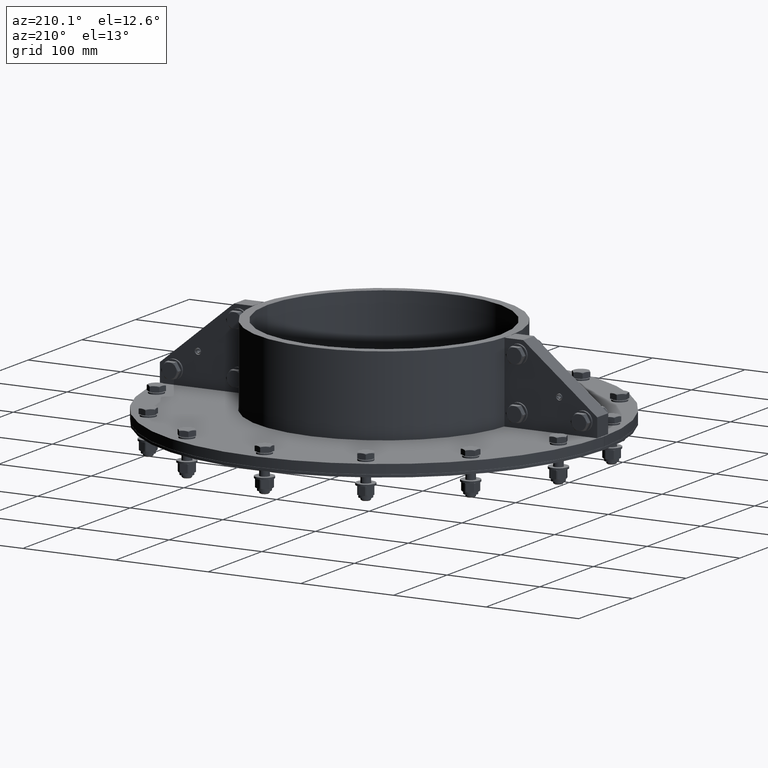
[diagram: clean part render]
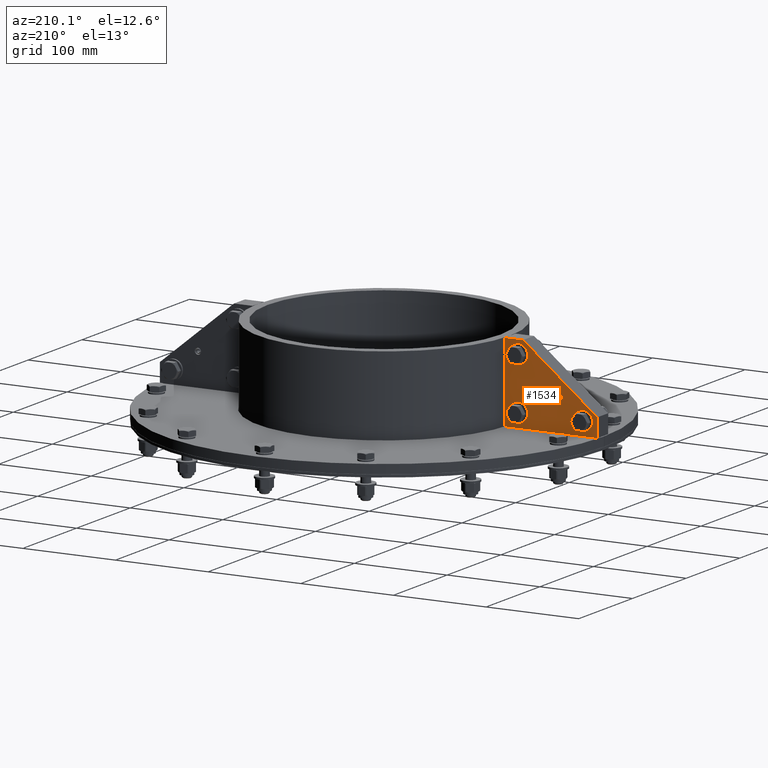
[diagram: same view with one face highlighted and labeled with its STEP entity id]
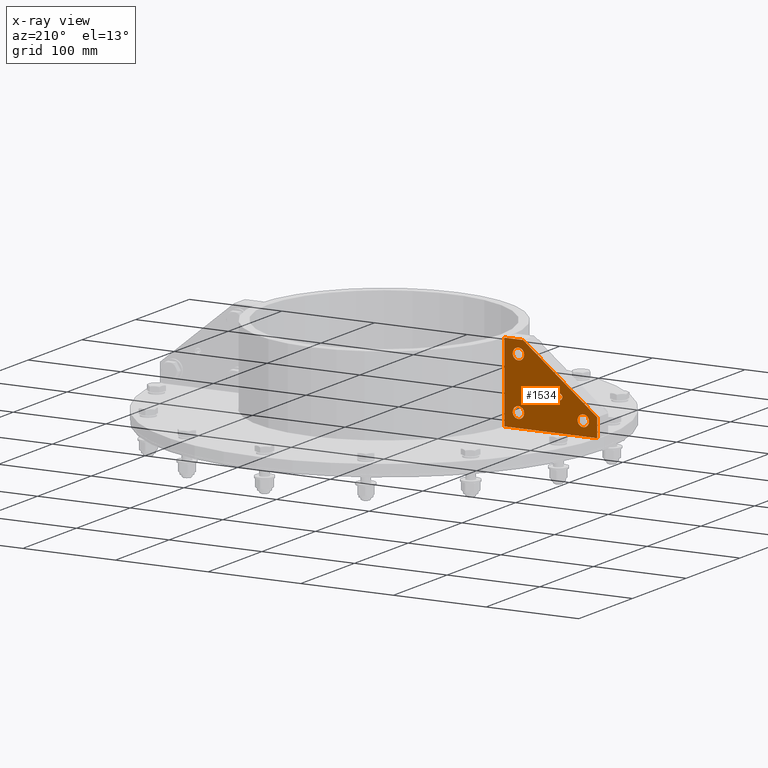
[diagram: x-ray of the same camera — body ghosted, the highlighted face saturated]
A machine part, auxiliary view. The second image highlights one B-rep face of the part: STEP entity #1534.
The next image is the same camera in x-ray: the body ghosted, the highlighted face saturated — about 0% of this face is hidden behind the body in this view.
In plain terms, the highlighted planar face has unit normal (-0, 1, 0).
Its self-contained STEP definition (entity closure, byte-faithful):
#1234=CARTESIAN_POINT('',(21.150000000000002,71.0,5.0));
#1235=VERTEX_POINT('',#1234);
#1236=CARTESIAN_POINT('',(15.0,71.0,5.0));
#1237=DIRECTION('',(0.0,0.0,-1.0));
#1238=DIRECTION('',(-1.0,0.0,0.0));
#1239=AXIS2_PLACEMENT_3D('',#1236,#1237,#1238);
#1240=CIRCLE('',#1239,6.150000000000001);
#1241=EDGE_CURVE('',#1235,#1235,#1240,.T.);
#1262=CARTESIAN_POINT('',(91.150000000000006,15.000000000000002,5.0));
#1263=VERTEX_POINT('',#1262);
#1264=CARTESIAN_POINT('',(85.0,15.000000000000002,5.0));
#1265=DIRECTION('',(0.0,0.0,-1.0));
#1266=DIRECTION('',(-1.0,0.0,0.0));
#1267=AXIS2_PLACEMENT_3D('',#1264,#1265,#1266);
#1268=CIRCLE('',#1267,6.150000000000001);
#1269=EDGE_CURVE('',#1263,#1263,#1268,.T.);
#1290=CARTESIAN_POINT('',(21.150000000000002,15.000000000000002,5.0));
#1291=VERTEX_POINT('',#1290);
#1292=CARTESIAN_POINT('',(15.0,15.000000000000002,5.0));
#1293=DIRECTION('',(0.0,0.0,-1.0));
#1294=DIRECTION('',(-1.0,0.0,0.0));
#1295=AXIS2_PLACEMENT_3D('',#1292,#1293,#1294);
#1296=CIRCLE('',#1295,6.150000000000001);
#1297=EDGE_CURVE('',#1291,#1291,#1296,.T.);
#1318=CARTESIAN_POINT('',(62.350000000000001,35.0,5.0));
#1319=VERTEX_POINT('',#1318);
#1320=CARTESIAN_POINT('',(59.0,35.0,5.0));
#1321=DIRECTION('',(0.0,0.0,-1.0));
#1322=DIRECTION('',(-1.0,0.0,0.0));
#1323=AXIS2_PLACEMENT_3D('',#1320,#1321,#1322);
#1324=CIRCLE('',#1323,3.35);
#1325=EDGE_CURVE('',#1319,#1319,#1324,.T.);
#1395=CARTESIAN_POINT('',(0.0,85.0,5.0));
#1396=VERTEX_POINT('',#1395);
#1397=CARTESIAN_POINT('',(20.0,85.0,5.0));
#1398=VERTEX_POINT('',#1397);
#1399=CARTESIAN_POINT('',(0.0,85.0,5.0));
#1400=DIRECTION('',(1.0,0.0,0.0));
#1401=VECTOR('',#1400,20.0);
#1402=LINE('',#1399,#1401);
#1403=EDGE_CURVE('',#1396,#1398,#1402,.T.);
#1426=CARTESIAN_POINT('',(100.0,20.000000000000018,5.0));
#1427=VERTEX_POINT('',#1426);
#1428=CARTESIAN_POINT('',(20.0,85.0,5.0));
#1429=DIRECTION('',(0.776114000116266,-0.630592625094466,0.0));
#1430=VECTOR('',#1429,103.0776406404415);
#1431=LINE('',#1428,#1430);
#1432=EDGE_CURVE('',#1398,#1427,#1431,.T.);
#1450=CARTESIAN_POINT('',(100.0,1.836970E-014,5.0));
#1451=VERTEX_POINT('',#1450);
#1452=CARTESIAN_POINT('',(100.0,20.000000000000018,5.0));
#1453=DIRECTION('',(0.0,-1.0,0.0));
#1454=VECTOR('',#1453,20.0);
#1455=LINE('',#1452,#1454);
#1456=EDGE_CURVE('',#1427,#1451,#1455,.T.);
#1474=CARTESIAN_POINT('',(0.0,0.0,5.0));
#1475=VERTEX_POINT('',#1474);
#1476=CARTESIAN_POINT('',(100.0,1.836970E-014,5.0));
#1477=DIRECTION('',(-1.0,0.0,0.0));
#1478=VECTOR('',#1477,100.0);
#1479=LINE('',#1476,#1478);
#1480=EDGE_CURVE('',#1451,#1475,#1479,.T.);
#1498=CARTESIAN_POINT('',(0.0,0.0,5.0));
#1499=DIRECTION('',(0.0,1.0,0.0));
#1500=VECTOR('',#1499,85.0);
#1501=LINE('',#1498,#1500);
#1502=EDGE_CURVE('',#1475,#1396,#1501,.T.);
#1510=CARTESIAN_POINT('',(40.797228400869528,33.297228400869542,5.0));
#1511=DIRECTION('',(0.0,0.0,1.0));
#1512=DIRECTION('',(1.0,0.0,0.0));
#1513=AXIS2_PLACEMENT_3D('',#1510,#1511,#1512);
#1514=PLANE('',#1513);
#1515=ORIENTED_EDGE('',*,*,#1403,.F.);
#1516=ORIENTED_EDGE('',*,*,#1502,.F.);
#1517=ORIENTED_EDGE('',*,*,#1480,.F.);
#1518=ORIENTED_EDGE('',*,*,#1456,.F.);
#1519=ORIENTED_EDGE('',*,*,#1432,.F.);
#1520=EDGE_LOOP('',(#1515,#1516,#1517,#1518,#1519));
#1521=FACE_OUTER_BOUND('',#1520,.T.);
#1522=ORIENTED_EDGE('',*,*,#1241,.T.);
#1523=EDGE_LOOP('',(#1522));
#1524=FACE_BOUND('',#1523,.T.);
#1525=ORIENTED_EDGE('',*,*,#1269,.T.);
#1526=EDGE_LOOP('',(#1525));
#1527=FACE_BOUND('',#1526,.T.);
#1528=ORIENTED_EDGE('',*,*,#1297,.T.);
#1529=EDGE_LOOP('',(#1528));
#1530=FACE_BOUND('',#1529,.T.);
#1531=ORIENTED_EDGE('',*,*,#1325,.T.);
#1532=EDGE_LOOP('',(#1531));
#1533=FACE_BOUND('',#1532,.T.);
#1534=ADVANCED_FACE('',(#1521,#1524,#1527,#1530,#1533),#1514,.T.);